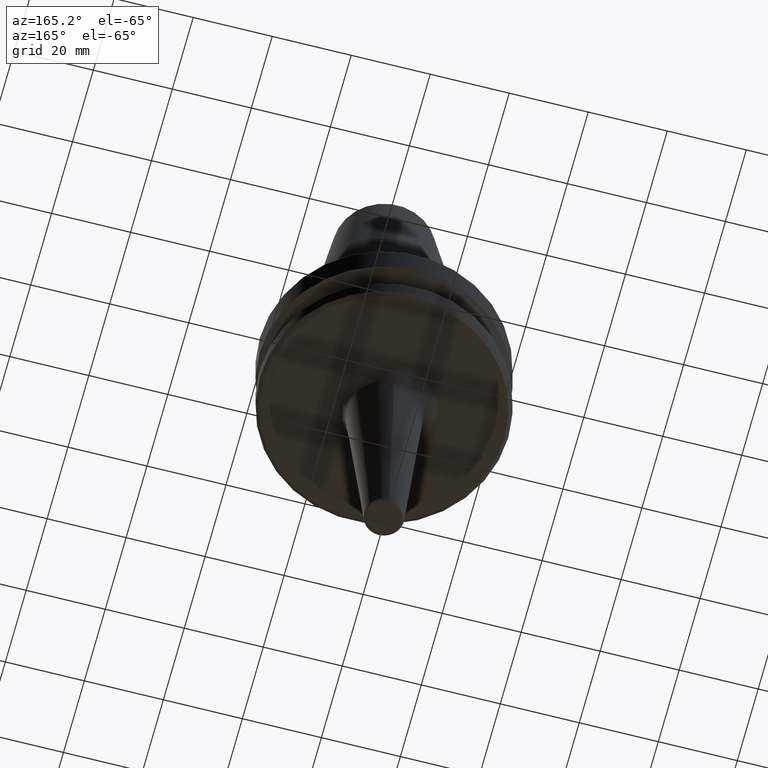
[diagram: clean part render]
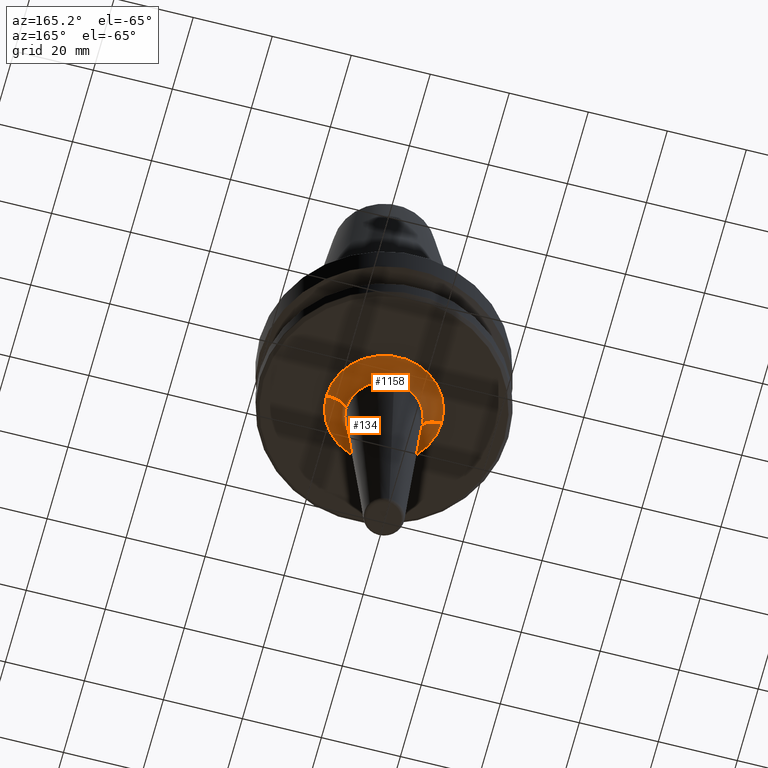
[diagram: same view with one multi-face feature highlighted, each face labeled with its STEP entity id]
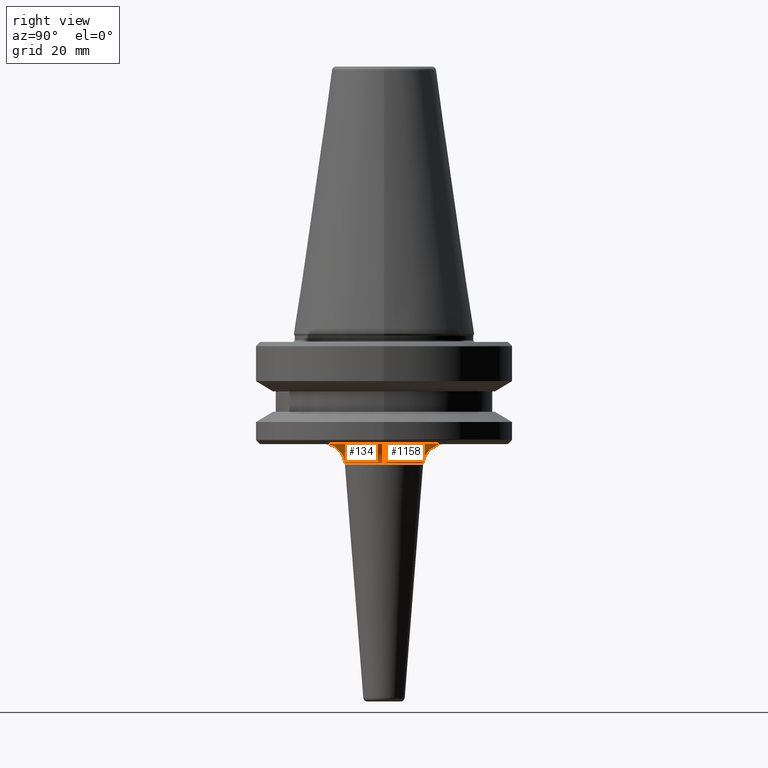
[diagram: same view with one multi-face feature highlighted, each face labeled with its STEP entity id]
A machine part, auxiliary view. The highlighted faces form ONE feature: a constant-radius fillet chain: 2 tangent blend faces with common blend radius 5 mm. The faces share edges in the B-rep.
A second angle (right view) of the same feature is appended — it is thin or edge-on in the first view.
Their STEP definitions:
[1] entity #134 (Torus):
#30 = AXIS2_PLACEMENT_3D ( 'NONE', #43, #697, #155 ) ;
#36 = VERTEX_POINT ( 'NONE', #909 ) ;
#43 = CARTESIAN_POINT ( 'NONE',  ( -3.722596150379693400E-014, 3.967253165928671700E-014, -31.60770452136080900 ) ) ;
#52 = TOROIDAL_SURFACE ( 'NONE', #383, 14.58015998824159700, 5.000000000000000000 ) ;
#66 = EDGE_CURVE ( 'NONE', #712, #821, #914, .T. ) ;
#134 = ADVANCED_FACE ( 'NONE', ( #310 ), #52, .F. ) ;
#155 = DIRECTION ( 'NONE',  ( 0.0000000000000000000, -1.000000000000000000, -7.231348948948336800E-016 ) ) ;
#193 = DIRECTION ( 'NONE',  ( -0.0000000000000000000, 6.350576670569805800E-016, -1.000000000000000000 ) ) ;
#239 = EDGE_CURVE ( 'NONE', #906, #821, #681, .T. ) ;
#244 = CARTESIAN_POINT ( 'NONE',  ( 14.58015998824156000, 4.145808628535235600E-014, -27.00000000000000400 ) ) ;
#284 = CIRCLE ( 'NONE', #30, 9.595573319575954900 ) ;
#310 = FACE_OUTER_BOUND ( 'NONE', #841, .T. ) ;
#344 = ORIENTED_EDGE ( 'NONE', *, *, #66, .T. ) ;
#379 = CARTESIAN_POINT ( 'NONE',  ( -3.722596150379693400E-014, 3.967253165928671700E-014, -27.00000000000000400 ) ) ;
#383 = AXIS2_PLACEMENT_3D ( 'NONE', #762, #487, #484 ) ;
#398 = VERTEX_POINT ( 'NONE', #606 ) ;
#401 = CARTESIAN_POINT ( 'NONE',  ( -14.58015998824163300, 3.967253165928671700E-014, -32.00000000000000000 ) ) ;
#455 = AXIS2_PLACEMENT_3D ( 'NONE', #581, #1037, #1141 ) ;
#457 = ORIENTED_EDGE ( 'NONE', *, *, #864, .F. ) ;
#474 = DIRECTION ( 'NONE',  ( -1.000000000000000000, 0.0000000000000000000, 0.0000000000000000000 ) ) ;
#477 = CIRCLE ( 'NONE', #767, 4.999999999999997300 ) ;
#484 = DIRECTION ( 'NONE',  ( -1.000000000000000000, 0.0000000000000000000, 0.0000000000000000000 ) ) ;
#486 = DIRECTION ( 'NONE',  ( 0.0000000000000000000, 0.0000000000000000000, -1.000000000000000000 ) ) ;
#487 = DIRECTION ( 'NONE',  ( 0.0000000000000000000, 0.0000000000000000000, -1.000000000000000000 ) ) ;
#581 = CARTESIAN_POINT ( 'NONE',  ( 14.58015998824156000, 4.145808628535235600E-014, -32.00000000000000000 ) ) ;
#606 = CARTESIAN_POINT ( 'NONE',  ( -9.595573319575992200, 3.967253165928672300E-014, -31.60770452136080900 ) ) ;
#619 = AXIS2_PLACEMENT_3D ( 'NONE', #379, #654, #474 ) ;
#637 = AXIS2_PLACEMENT_3D ( 'NONE', #721, #193, #818 ) ;
#641 = CIRCLE ( 'NONE', #637, 9.595573319575954900 ) ;
#654 = DIRECTION ( 'NONE',  ( -0.0000000000000000000, -0.0000000000000000000, 1.000000000000000000 ) ) ;
#681 = CIRCLE ( 'NONE', #619, 14.58015998824159700 ) ;
#697 = DIRECTION ( 'NONE',  ( -0.0000000000000000000, 6.350576670569805800E-016, -1.000000000000000000 ) ) ;
#712 = VERTEX_POINT ( 'NONE', #888 ) ;
#717 = ORIENTED_EDGE ( 'NONE', *, *, #997, .F. ) ;
#721 = CARTESIAN_POINT ( 'NONE',  ( -3.722596150379693400E-014, 3.967253165928671700E-014, -31.60770452136080900 ) ) ;
#762 = CARTESIAN_POINT ( 'NONE',  ( -3.722596150379693400E-014, 3.967253165928671700E-014, -32.00000000000000000 ) ) ;
#767 = AXIS2_PLACEMENT_3D ( 'NONE', #401, #1039, #486 ) ;
#804 = ORIENTED_EDGE ( 'NONE', *, *, #1177, .F. ) ;
#818 = DIRECTION ( 'NONE',  ( 0.0000000000000000000, -1.000000000000000000, -7.231348948948336800E-016 ) ) ;
#821 = VERTEX_POINT ( 'NONE', #244 ) ;
#841 = EDGE_LOOP ( 'NONE', ( #457, #344, #913, #717, #804 ) ) ;
#864 = EDGE_CURVE ( 'NONE', #712, #36, #641, .T. ) ;
#888 = CARTESIAN_POINT ( 'NONE',  ( 9.595573319575919400, 4.115286837990966400E-014, -31.60770452136080900 ) ) ;
#906 = VERTEX_POINT ( 'NONE', #930 ) ;
#909 = CARTESIAN_POINT ( 'NONE',  ( 0.0000000000000000000, -9.595573319575953200, -31.60770452136080900 ) ) ;
#913 = ORIENTED_EDGE ( 'NONE', *, *, #239, .F. ) ;
#914 = CIRCLE ( 'NONE', #455, 5.000000000000000900 ) ;
#930 = CARTESIAN_POINT ( 'NONE',  ( -14.58015998824163300, 3.967253165928671700E-014, -27.00000000000000400 ) ) ;
#997 = EDGE_CURVE ( 'NONE', #398, #906, #477, .T. ) ;
#1037 = DIRECTION ( 'NONE',  ( -1.224646799147353200E-016, 1.000000000000000000, 0.0000000000000000000 ) ) ;
#1039 = DIRECTION ( 'NONE',  ( -0.0000000000000000000, -1.000000000000000000, -0.0000000000000000000 ) ) ;
#1141 = DIRECTION ( 'NONE',  ( -1.000000000000000000, -1.224646799147350200E-016, 0.0000000000000000000 ) ) ;
#1177 = EDGE_CURVE ( 'NONE', #36, #398, #284, .T. ) ;
[2] entity #1158 (Torus):
#5 = ORIENTED_EDGE ( 'NONE', *, *, #262, .F. ) ;
#28 = EDGE_CURVE ( 'NONE', #873, #712, #1110, .T. ) ;
#66 = EDGE_CURVE ( 'NONE', #712, #821, #914, .T. ) ;
#164 = FACE_OUTER_BOUND ( 'NONE', #543, .T. ) ;
#198 = AXIS2_PLACEMENT_3D ( 'NONE', #978, #1099, #991 ) ;
#213 = CARTESIAN_POINT ( 'NONE',  ( -3.722596150379693400E-014, 3.967253165928671700E-014, -31.60770452136080900 ) ) ;
#244 = CARTESIAN_POINT ( 'NONE',  ( 14.58015998824156000, 4.145808628535235600E-014, -27.00000000000000400 ) ) ;
#262 = EDGE_CURVE ( 'NONE', #398, #873, #1157, .T. ) ;
#326 = CARTESIAN_POINT ( 'NONE',  ( -3.722596150379693400E-014, 3.967253165928671700E-014, -32.00000000000000000 ) ) ;
#384 = CARTESIAN_POINT ( 'NONE',  ( -3.722596150379693400E-014, 3.967253165928671700E-014, -27.00000000000000400 ) ) ;
#398 = VERTEX_POINT ( 'NONE', #606 ) ;
#401 = CARTESIAN_POINT ( 'NONE',  ( -14.58015998824163300, 3.967253165928671700E-014, -32.00000000000000000 ) ) ;
#455 = AXIS2_PLACEMENT_3D ( 'NONE', #581, #1037, #1141 ) ;
#475 = DIRECTION ( 'NONE',  ( -1.000000000000000000, 0.0000000000000000000, 0.0000000000000000000 ) ) ;
#477 = CIRCLE ( 'NONE', #767, 4.999999999999997300 ) ;
#486 = DIRECTION ( 'NONE',  ( 0.0000000000000000000, 0.0000000000000000000, -1.000000000000000000 ) ) ;
#543 = EDGE_LOOP ( 'NONE', ( #1123, #840, #5, #982, #1167 ) ) ;
#549 = TOROIDAL_SURFACE ( 'NONE', #825, 14.58015998824159700, 5.000000000000000000 ) ;
#555 = CARTESIAN_POINT ( 'NONE',  ( 1.175118815180241400E-015, 9.595573319575956700, -31.60770452136080900 ) ) ;
#563 = DIRECTION ( 'NONE',  ( -0.0000000000000000000, 6.350576670569805800E-016, -1.000000000000000000 ) ) ;
#581 = CARTESIAN_POINT ( 'NONE',  ( 14.58015998824156000, 4.145808628535235600E-014, -32.00000000000000000 ) ) ;
#606 = CARTESIAN_POINT ( 'NONE',  ( -9.595573319575992200, 3.967253165928672300E-014, -31.60770452136080900 ) ) ;
#646 = DIRECTION ( 'NONE',  ( 0.0000000000000000000, -1.000000000000000000, -7.231348948948336800E-016 ) ) ;
#712 = VERTEX_POINT ( 'NONE', #888 ) ;
#724 = EDGE_CURVE ( 'NONE', #821, #906, #946, .T. ) ;
#767 = AXIS2_PLACEMENT_3D ( 'NONE', #401, #1039, #486 ) ;
#821 = VERTEX_POINT ( 'NONE', #244 ) ;
#825 = AXIS2_PLACEMENT_3D ( 'NONE', #326, #1057, #962 ) ;
#840 = ORIENTED_EDGE ( 'NONE', *, *, #28, .F. ) ;
#873 = VERTEX_POINT ( 'NONE', #555 ) ;
#888 = CARTESIAN_POINT ( 'NONE',  ( 9.595573319575919400, 4.115286837990966400E-014, -31.60770452136080900 ) ) ;
#906 = VERTEX_POINT ( 'NONE', #930 ) ;
#914 = CIRCLE ( 'NONE', #455, 5.000000000000000900 ) ;
#930 = CARTESIAN_POINT ( 'NONE',  ( -14.58015998824163300, 3.967253165928671700E-014, -27.00000000000000400 ) ) ;
#946 = CIRCLE ( 'NONE', #1203, 14.58015998824159700 ) ;
#962 = DIRECTION ( 'NONE',  ( -1.000000000000000000, 0.0000000000000000000, 0.0000000000000000000 ) ) ;
#970 = AXIS2_PLACEMENT_3D ( 'NONE', #213, #563, #646 ) ;
#978 = CARTESIAN_POINT ( 'NONE',  ( -3.722596150379693400E-014, 3.967253165928671700E-014, -31.60770452136080900 ) ) ;
#982 = ORIENTED_EDGE ( 'NONE', *, *, #997, .T. ) ;
#991 = DIRECTION ( 'NONE',  ( 0.0000000000000000000, -1.000000000000000000, -7.231348948948336800E-016 ) ) ;
#997 = EDGE_CURVE ( 'NONE', #398, #906, #477, .T. ) ;
#1022 = DIRECTION ( 'NONE',  ( -0.0000000000000000000, -0.0000000000000000000, 1.000000000000000000 ) ) ;
#1037 = DIRECTION ( 'NONE',  ( -1.224646799147353200E-016, 1.000000000000000000, 0.0000000000000000000 ) ) ;
#1039 = DIRECTION ( 'NONE',  ( -0.0000000000000000000, -1.000000000000000000, -0.0000000000000000000 ) ) ;
#1057 = DIRECTION ( 'NONE',  ( 0.0000000000000000000, 0.0000000000000000000, -1.000000000000000000 ) ) ;
#1099 = DIRECTION ( 'NONE',  ( -0.0000000000000000000, 6.350576670569805800E-016, -1.000000000000000000 ) ) ;
#1110 = CIRCLE ( 'NONE', #198, 9.595573319575954900 ) ;
#1123 = ORIENTED_EDGE ( 'NONE', *, *, #66, .F. ) ;
#1141 = DIRECTION ( 'NONE',  ( -1.000000000000000000, -1.224646799147350200E-016, 0.0000000000000000000 ) ) ;
#1157 = CIRCLE ( 'NONE', #970, 9.595573319575954900 ) ;
#1158 = ADVANCED_FACE ( 'NONE', ( #164 ), #549, .F. ) ;
#1167 = ORIENTED_EDGE ( 'NONE', *, *, #724, .F. ) ;
#1203 = AXIS2_PLACEMENT_3D ( 'NONE', #384, #1022, #475 ) ;